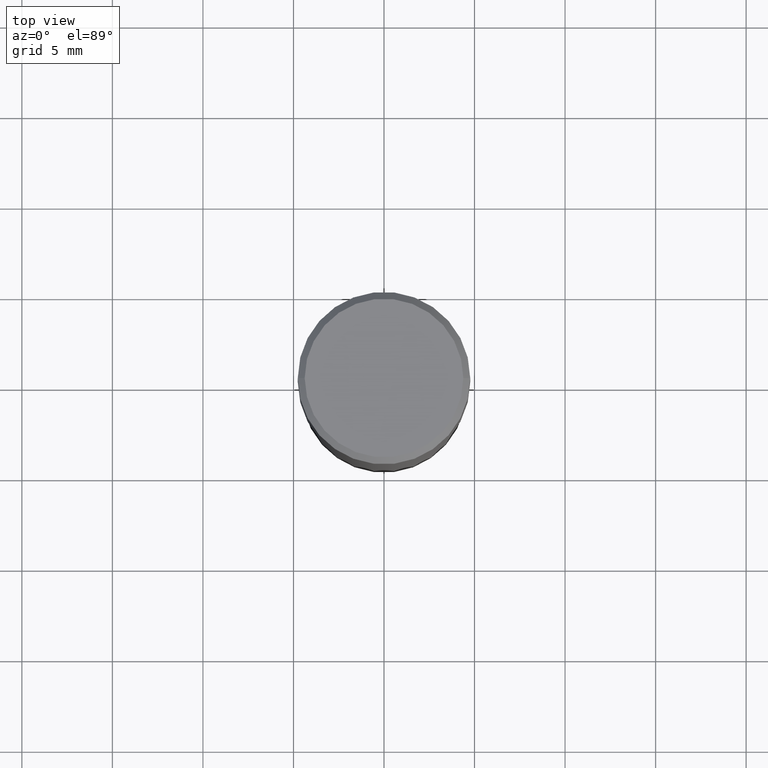
[diagram: clean part render]
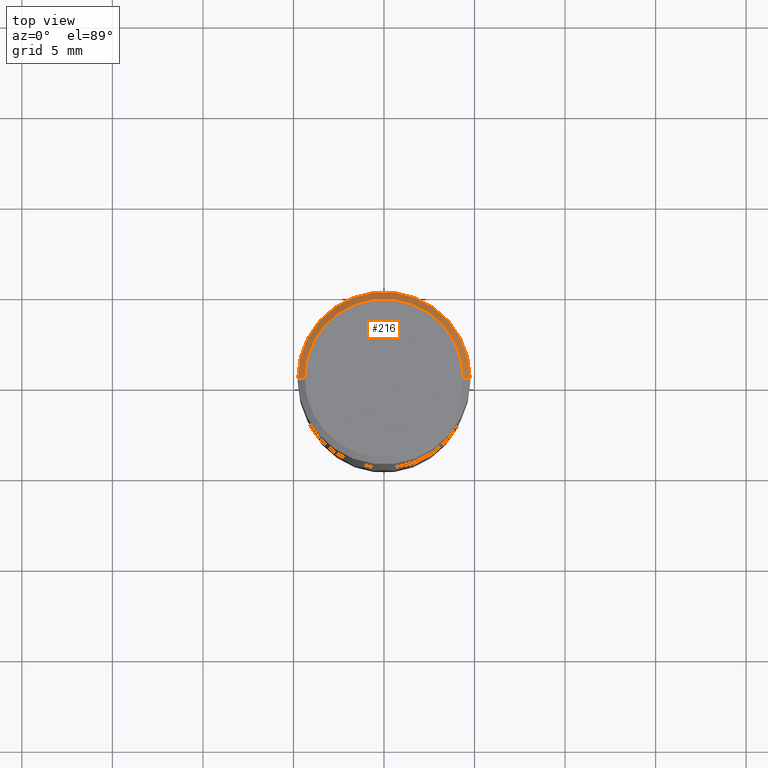
[diagram: same view with one face highlighted and labeled with its STEP entity id]
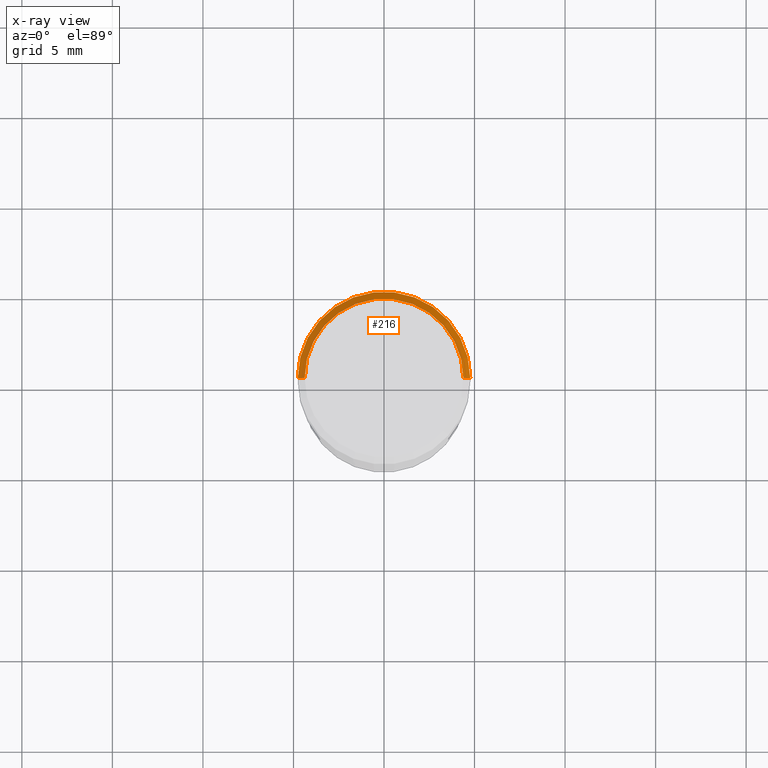
[diagram: x-ray of the same camera — body ghosted, the highlighted face saturated]
A machine part, top view. The second image highlights one B-rep face of the part: STEP entity #216.
The next image is the same camera in x-ray: the body ghosted, the highlighted face saturated — about 0% of this face is hidden behind the body in this view.
In plain terms, the highlighted conical surface has half-angle 45 deg.
Its self-contained STEP definition (entity closure, byte-faithful):
#13 = VERTEX_POINT ( 'NONE', #335 ) ;
#22 = LINE ( 'NONE', #389, #312 ) ;
#23 = CARTESIAN_POINT ( 'NONE',  ( 0.1725000000000000144, -1.261075749640199308E-15, -2.636744989014362231E-17 ) ) ;
#27 = DIRECTION ( 'NONE',  ( 0.7071067811865483499, -7.319954787623257623E-15, -0.7071067811865466846 ) ) ;
#37 = CONICAL_SURFACE ( 'NONE', #284, 0.1875000000000000278, 0.7853981633974495002 ) ;
#59 = AXIS2_PLACEMENT_3D ( 'NONE', #133, #164, #98 ) ;
#66 = EDGE_CURVE ( 'NONE', #82, #13, #320, .T. ) ;
#69 = FACE_OUTER_BOUND ( 'NONE', #331, .T. ) ;
#82 = VERTEX_POINT ( 'NONE', #171 ) ;
#96 = DIRECTION ( 'NONE',  ( 1.000000000000000000, -6.982962677686266711E-15, 4.876912640186324808E-29 ) ) ;
#98 = DIRECTION ( 'NONE',  ( 1.000000000000000000, -6.982962677686265922E-15, 0.000000000000000000 ) ) ;
#118 = VERTEX_POINT ( 'NONE', #23 ) ;
#131 = DIRECTION ( 'NONE',  ( -2.445468806185136597E-29, 3.491481338843145583E-15, 1.000000000000000000 ) ) ;
#133 = CARTESIAN_POINT ( 'NONE',  ( 3.668203209277705088E-31, -5.237222008264718399E-17, -0.01499999999999999944 ) ) ;
#138 = LINE ( 'NONE', #464, #162 ) ;
#145 = CIRCLE ( 'NONE', #425, 0.1725000000000000144 ) ;
#157 = CARTESIAN_POINT ( 'NONE',  ( -0.1725000000000000144, 1.230747171942204192E-15, -2.636744989016075847E-17 ) ) ;
#162 = VECTOR ( 'NONE', #27, 39.37007874015748143 ) ;
#164 = DIRECTION ( 'NONE',  ( -2.445468806185136597E-29, 3.491481338843145583E-15, 1.000000000000000000 ) ) ;
#171 = CARTESIAN_POINT ( 'NONE',  ( 0.1875000000000000278, -1.361677722148822285E-15, -0.01499999999999999944 ) ) ;
#214 = CARTESIAN_POINT ( 'NONE',  ( 3.668203209277705088E-31, -5.237222008264718399E-17, -0.01499999999999999944 ) ) ;
#216 = ADVANCED_FACE ( 'NONE', ( #69 ), #37, .T. ) ;
#217 = DIRECTION ( 'NONE',  ( -1.000000000000000000, 6.982962677686265922E-15, 0.000000000000000000 ) ) ;
#283 = CARTESIAN_POINT ( 'NONE',  ( 6.448077620501702025E-46, -9.206145924434830208E-32, -2.636744989015224123E-17 ) ) ;
#284 = AXIS2_PLACEMENT_3D ( 'NONE', #214, #355, #217 ) ;
#296 = ORIENTED_EDGE ( 'NONE', *, *, #66, .T. ) ;
#312 = VECTOR ( 'NONE', #420, 39.37007874015748143 ) ;
#320 = CIRCLE ( 'NONE', #59, 0.1875000000000000278 ) ;
#331 = EDGE_LOOP ( 'NONE', ( #374, #447, #296, #365 ) ) ;
#335 = CARTESIAN_POINT ( 'NONE',  ( -0.1875000000000000278, 5.014870959182341138E-16, -0.01499999999999999944 ) ) ;
#351 = VERTEX_POINT ( 'NONE', #157 ) ;
#355 = DIRECTION ( 'NONE',  ( 2.445468806185136597E-29, -3.491481338843145583E-15, -1.000000000000000000 ) ) ;
#365 = ORIENTED_EDGE ( 'NONE', *, *, #379, .F. ) ;
#374 = ORIENTED_EDGE ( 'NONE', *, *, #439, .F. ) ;
#379 = EDGE_CURVE ( 'NONE', #351, #13, #22, .T. ) ;
#389 = CARTESIAN_POINT ( 'NONE',  ( -0.1875000000000000278, 1.256933281983527732E-15, -0.01499999999999999944 ) ) ;
#410 = EDGE_CURVE ( 'NONE', #118, #82, #138, .T. ) ;
#420 = DIRECTION ( 'NONE',  ( -0.7071067811865483499, 2.468850131082265738E-15, -0.7071067811865466846 ) ) ;
#425 = AXIS2_PLACEMENT_3D ( 'NONE', #283, #131, #96 ) ;
#439 = EDGE_CURVE ( 'NONE', #118, #351, #145, .T. ) ;
#447 = ORIENTED_EDGE ( 'NONE', *, *, #410, .T. ) ;
#464 = CARTESIAN_POINT ( 'NONE',  ( 0.1875000000000000278, -1.338715594664809642E-15, -0.01499999999999999944 ) ) ;